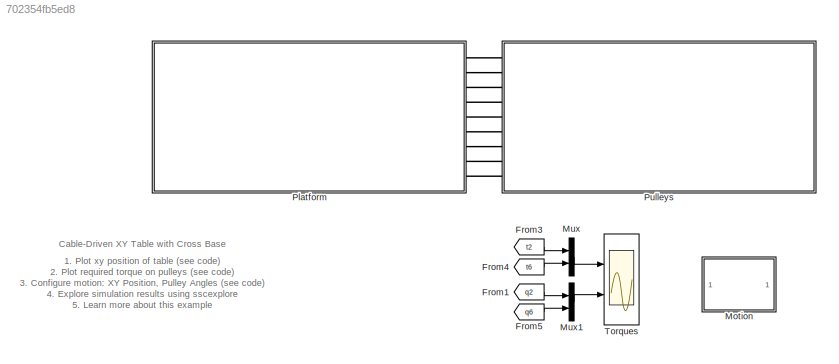
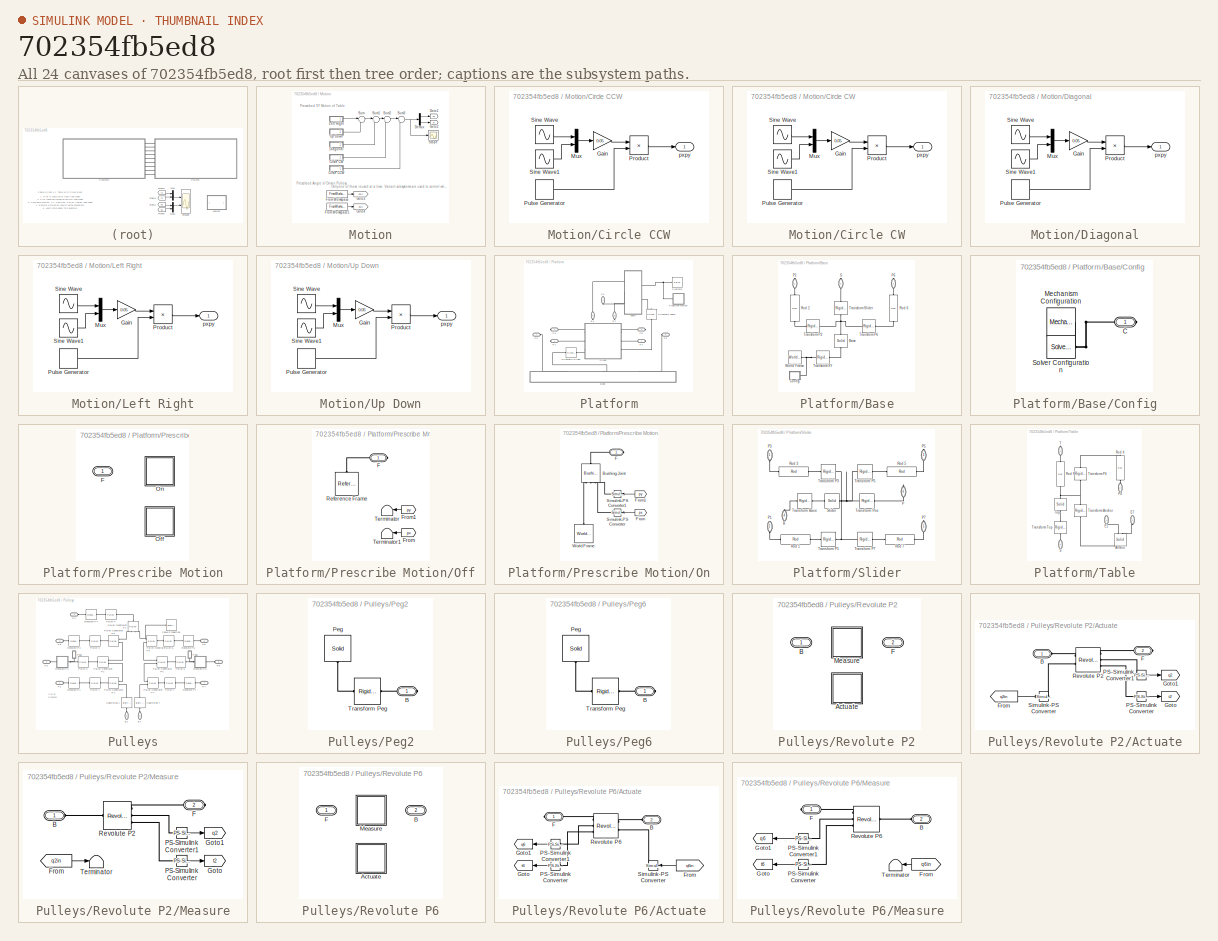
[diagram: thumbnail index - all 24 canvases of the model, root first then tree order]
MODEL slx_702354fb5ed8
KIND model
CONFIG AbsTol = auto
CONFIG EnableMultiTasking = on
CONFIG FixedStep = auto
CONFIG MaxStep = auto
CONFIG MinStep = auto
CONFIG RelTol = 1e-3
CONFIG SampleTimeConstraint = Unconstrained
CONFIG Solver = VariableStepAuto
CONFIG SolverName = VariableStepAuto
CONFIG StartTime = 0.0
CONFIG StopTime = 13
WORKSPACE source: MATLAB code (in-file)
WORKSPACE p_th = 0.01
WORKSPACE p_gd = 0.005
WORKSPACE p_ga = 25
WORKSPACE p_hr = 0.005
WORKSPACE p_rho = 7000
WORKSPACE rad_drive = 0.015*2  (= 0.03)
WORKSPACE rad_axis = 0.015*2  (= 0.03)
WORKSPACE rad_ctr = 0.015
WORKSPACE t_base_l = 0.4
WORKSPACE t_base_w = 0.1
WORKSPACE t_base_h = 0.01
WORKSPACE t_slider_l = 0.15
WORKSPACE t_slider_w = 0.1
WORKSPACE t_slider_h = 0.01
WORKSPACE t_pos_l = 0.025
WORKSPACE t_pos_w = 0.45
WORKSPACE t_pos_h = 0.01
WORKSPACE t_base_clr = [0.5412 0.6824 0.8392]
WORKSPACE t_slider_clr = [0.635 0.984 0.498]
WORKSPACE t_pos_clr = [1.0 0.99607843 0.8]
WORKSPACE p_drive_clr = t_base_clr*0.8
WORKSPACE p_axis_clr = t_pos_clr*0.8
WORKSPACE p_ctr_clr = t_slider_clr*0.8
WORKSPACE p_pos_off = 0.01
BLOCK [From] From1
  GotoTag = q2
  TagVisibility = global
BLOCK [From] From3
  GotoTag = t2
  TagVisibility = global
BLOCK [From] From4
  GotoTag = t6
  TagVisibility = global
BLOCK [From] From5
  GotoTag = q6
  TagVisibility = global
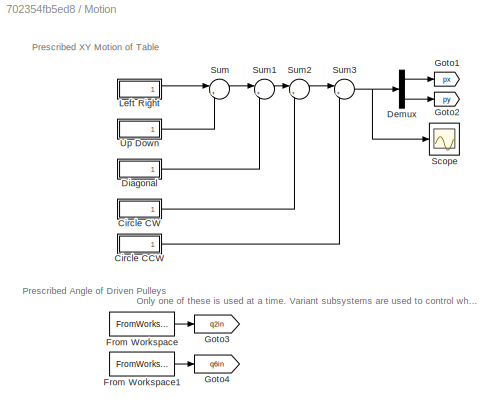
BLOCK [SubSystem] Motion
  Ports = []
  RequestExecContextInheritance = off
BLOCK [SubSystem] Motion/Circle CCW
  Ports = [0, 1]
  RequestExecContextInheritance = off
BLOCK [Gain] Motion/Circle CCW/Gain
  Gain = 0.05
  OutDataTypeStr = Inherit: Inherit via internal rule
  ParamDataTypeStr = Inherit: Inherit via internal rule
  SaturateOnIntegerOverflow = off
BLOCK [Mux] Motion/Circle CCW/Mux
  DisplayOption = bar
  Inputs = 2
  Ports = [2, 1]
BLOCK [Product] Motion/Circle CCW/Product
  InputSameDT = off
  OutDataTypeStr = Inherit: Inherit via internal rule
  Ports = [2, 1]
  RndMeth = Floor
  SaturateOnIntegerOverflow = off
BLOCK [DiscretePulseGenerator] Motion/Circle CCW/Pulse Generator
  Period = 15
  PhaseDelay = 10
  Ports = [0, 1]
  PulseType = Time based
  PulseWidth = 16.667
BLOCK [Sin] Motion/Circle CCW/Sine Wave
  Bias = -1
  Frequency = 2*pi/2.5
  Phase = pi/2
  Ports = [0, 1]
  SampleTime = 0
BLOCK [Sin] Motion/Circle CCW/Sine Wave1
  Frequency = 2*pi/2.5
  Ports = [0, 1]
  SampleTime = 0
BLOCK [Outport] Motion/Circle CCW/pxpy
  IconDisplay = Port number
BLOCK [SubSystem] Motion/Circle CW
  Ports = [0, 1]
  RequestExecContextInheritance = off
BLOCK [Gain] Motion/Circle CW/Gain
  Gain = 0.05
  OutDataTypeStr = Inherit: Inherit via internal rule
  ParamDataTypeStr = Inherit: Inherit via internal rule
  SaturateOnIntegerOverflow = off
BLOCK [Mux] Motion/Circle CW/Mux
  DisplayOption = bar
  Inputs = 2
  Ports = [2, 1]
BLOCK [Product] Motion/Circle CW/Product
  InputSameDT = off
  OutDataTypeStr = Inherit: Inherit via internal rule
  Ports = [2, 1]
  RndMeth = Floor
  SaturateOnIntegerOverflow = off
BLOCK [DiscretePulseGenerator] Motion/Circle CW/Pulse Generator
  Period = 15
  PhaseDelay = 7.5
  Ports = [0, 1]
  PulseType = Time based
  PulseWidth = 16.667
BLOCK [Sin] Motion/Circle CW/Sine Wave
  Bias = 1
  Frequency = 2*pi/2.5
  Phase = 3*pi/2
  Ports = [0, 1]
  SampleTime = 0
BLOCK [Sin] Motion/Circle CW/Sine Wave1
  Frequency = 2*pi/2.5
  Ports = [0, 1]
  SampleTime = 0
BLOCK [Outport] Motion/Circle CW/pxpy
  IconDisplay = Port number
BLOCK [Demux] Motion/Demux
  DisplayOption = bar
  Outputs = 2
  Ports = [1, 2]
BLOCK [SubSystem] Motion/Diagonal
  Ports = [0, 1]
  RequestExecContextInheritance = off
BLOCK [Gain] Motion/Diagonal/Gain
  Gain = 0.05
  OutDataTypeStr = Inherit: Inherit via internal rule
  ParamDataTypeStr = Inherit: Inherit via internal rule
  SaturateOnIntegerOverflow = off
BLOCK [Mux] Motion/Diagonal/Mux
  DisplayOption = bar
  Inputs = 2
  Ports = [2, 1]
BLOCK [Product] Motion/Diagonal/Product
  InputSameDT = off
  OutDataTypeStr = Inherit: Inherit via internal rule
  Ports = [2, 1]
  RndMeth = Floor
  SaturateOnIntegerOverflow = off
BLOCK [DiscretePulseGenerator] Motion/Diagonal/Pulse Generator
  Period = 15
  PhaseDelay = 5
  Ports = [0, 1]
  PulseType = Time based
  PulseWidth = 16.667
BLOCK [Sin] Motion/Diagonal/Sine Wave
  Frequency = 2*pi/2.5
  Ports = [0, 1]
  SampleTime = 0
BLOCK [Sin] Motion/Diagonal/Sine Wave1
  Frequency = 2*pi/2.5
  Ports = [0, 1]
  SampleTime = 0
BLOCK [Outport] Motion/Diagonal/pxpy
  IconDisplay = Port number
BLOCK [FromWorkspace] Motion/From Workspace
  SampleTime = 0
  VariableName = qd2
  ZeroCross = on
BLOCK [FromWorkspace] Motion/From Workspace1
  SampleTime = 0
  VariableName = qd6
  ZeroCross = on
BLOCK [Goto] Motion/Goto1
  GotoTag = px
  TagVisibility = global
BLOCK [Goto] Motion/Goto2
  GotoTag = py
  TagVisibility = global
BLOCK [Goto] Motion/Goto3
  GotoTag = q2in
  TagVisibility = global
BLOCK [Goto] Motion/Goto4
  GotoTag = q6in
  TagVisibility = global
BLOCK [SubSystem] Motion/Left Right
  Ports = [0, 1]
  RequestExecContextInheritance = off
BLOCK [Gain] Motion/Left Right/Gain
  Gain = 0.05
  OutDataTypeStr = Inherit: Inherit via internal rule
  ParamDataTypeStr = Inherit: Inherit via internal rule
  SaturateOnIntegerOverflow = off
BLOCK [Mux] Motion/Left Right/Mux
  DisplayOption = bar
  Inputs = 2
  Ports = [2, 1]
BLOCK [Product] Motion/Left Right/Product
  InputSameDT = off
  OutDataTypeStr = Inherit: Inherit via internal rule
  Ports = [2, 1]
  RndMeth = Floor
  SaturateOnIntegerOverflow = off
BLOCK [DiscretePulseGenerator] Motion/Left Right/Pulse Generator
  Period = 15
  Ports = [0, 1]
  PulseType = Time based
  PulseWidth = 16.667
BLOCK [Sin] Motion/Left Right/Sine Wave
  Frequency = 2*pi/2.5
  Ports = [0, 1]
  SampleTime = 0
BLOCK [Sin] Motion/Left Right/Sine Wave1
  Amplitude = -1*0
  Frequency = 2*pi/2.5
  Ports = [0, 1]
  SampleTime = 0
BLOCK [Outport] Motion/Left Right/pxpy
  IconDisplay = Port number
BLOCK [Scope] Motion/Scope
  Floating = off
  NumInputPorts = 1
  Ports = [1]
  ScopeSpecificationString = Simulink.scopes.TimeScopeBlockCfg('CurrentConfiguration', extmgr.ConfigurationSet(extmgr.Configuration('Core','General UI',true),extmgr.Configuration('Core','Source UI',true),extmgr.Configuration('Sources','WiredSimulink',true,'DataLoggingVariableName','ScopeData1'),extmgr.Configuration('Visuals','Time Domain',true,'SerializedDisplays',{struct('MinYLimReal','-0.125','MaxYLimReal','0.125','YLabelRe...<+1391ch>
BLOCK [Sum] Motion/Sum
  IconShape = round
  InputSameDT = off
  Inputs = |++
  OutDataTypeStr = Inherit: Inherit via internal rule
  Ports = [2, 1]
  SaturateOnIntegerOverflow = off
BLOCK [Sum] Motion/Sum1
  IconShape = round
  InputSameDT = off
  Inputs = |++
  OutDataTypeStr = Inherit: Inherit via internal rule
  Ports = [2, 1]
  SaturateOnIntegerOverflow = off
BLOCK [Sum] Motion/Sum2
  IconShape = round
  InputSameDT = off
  Inputs = |++
  OutDataTypeStr = Inherit: Inherit via internal rule
  Ports = [2, 1]
  SaturateOnIntegerOverflow = off
BLOCK [Sum] Motion/Sum3
  IconShape = round
  InputSameDT = off
  Inputs = |++
  OutDataTypeStr = Inherit: Inherit via internal rule
  Ports = [2, 1]
  SaturateOnIntegerOverflow = off
BLOCK [SubSystem] Motion/Up Down
  Ports = [0, 1]
  RequestExecContextInheritance = off
BLOCK [Gain] Motion/Up Down/Gain
  Gain = 0.05
  OutDataTypeStr = Inherit: Inherit via internal rule
  ParamDataTypeStr = Inherit: Inherit via internal rule
  SaturateOnIntegerOverflow = off
BLOCK [Mux] Motion/Up Down/Mux
  DisplayOption = bar
  Inputs = 2
  Ports = [2, 1]
BLOCK [Product] Motion/Up Down/Product
  InputSameDT = off
  OutDataTypeStr = Inherit: Inherit via internal rule
  Ports = [2, 1]
  RndMeth = Floor
  SaturateOnIntegerOverflow = off
BLOCK [DiscretePulseGenerator] Motion/Up Down/Pulse Generator
  Period = 15
  PhaseDelay = 2.5
  Ports = [0, 1]
  PulseType = Time based
  PulseWidth = 16.667
BLOCK [Sin] Motion/Up Down/Sine Wave
  Amplitude = 1*0
  Frequency = 2*pi/2.5
  Ports = [0, 1]
  SampleTime = 0
BLOCK [Sin] Motion/Up Down/Sine Wave1
  Frequency = 2*pi/2.5
  Ports = [0, 1]
  SampleTime = 0
BLOCK [Outport] Motion/Up Down/pxpy
  IconDisplay = Port number
BLOCK [Mux] Mux
  DisplayOption = bar
  Inputs = 2
  Ports = [2, 1]
BLOCK [Mux] Mux1
  DisplayOption = bar
  Inputs = 2
  Ports = [2, 1]
BLOCK [SubSystem] Platform
  Ports = [0, 0, 0, 0, 0, 0, 9]
  RequestExecContextInheritance = off
  Tag = PublishSubsystem
BLOCK [SubSystem] Platform/Base
  Ports = [0, 0, 0, 0, 0, 0, 3]
  RequestExecContextInheritance = off
BLOCK [Reference] Platform/Base/Base  REF=sm_lib/Body Elements/Solid
  Ports = [0, 0, 0, 0, 0, 1, 1]
  SourceBlock = sm_lib/Body Elements/Solid
  SourceProductBaseCode = MS
  SourceProductName = Simscape Multibody
  SourceType = Solid
BLOCK [SubSystem] Platform/Base/Config
  Ports = [0, 0, 0, 0, 0, 0, 1]
  RequestExecContextInheritance = off
BLOCK [PMIOPort] Platform/Base/Config/C
  Side = Right
BLOCK [Reference] Platform/Base/Config/Mechanism Configuration  REF=sm_lib/Utilities/Mechanism
Configuration
  Ports = [0, 0, 0, 0, 0, 0, 1]
  SourceBlock = sm_lib/Utilities/Mechanism\nConfiguration
  SourceProductBaseCode = MS
  SourceProductName = Simscape Multibody
  SourceType = Mechanism\nConfiguration
BLOCK [Reference] Platform/Base/Config/Solver Configuration  REF=nesl_utility/Solver
Configuration
  Ports = [0, 0, 0, 0, 0, 0, 1]
  SourceBlock = nesl_utility/Solver\nConfiguration
  SourceProductBaseCode = SS
  SourceProductName = Simscape
  SourceType = Solver\nConfiguration
BLOCK [PMIOPort] Platform/Base/P2
  Side = Right
BLOCK [PMIOPort] Platform/Base/P6
  Port = 3
  Side = Right
BLOCK [Reference] Platform/Base/Rod 2  REF=Multibody_Parts_Lib/Basic/Rod
  Ports = [0, 0, 0, 0, 0, 1, 1]
  SourceBlock = Multibody_Parts_Lib/Basic/Rod
  SourceProductName = Simscape Multibody Parts Library
  SourceType = Rod
BLOCK [Reference] Platform/Base/Rod 6  REF=Multibody_Parts_Lib/Basic/Rod
  Ports = [0, 0, 0, 0, 0, 1, 1]
  SourceBlock = Multibody_Parts_Lib/Basic/Rod
  SourceProductName = Simscape Multibody Parts Library
  SourceType = Rod
BLOCK [PMIOPort] Platform/Base/S
  Port = 2
  Side = Right
BLOCK [Reference] Platform/Base/Transform P2  REF=sm_lib/Frames and
Transforms/Rigid
Transform
  Ports = [0, 0, 0, 0, 0, 1, 1]
  SourceBlock = sm_lib/Frames and\nTransforms/Rigid\nTransform
  SourceProductBaseCode = MS
  SourceProductName = Simscape Multibody
  SourceType = Rigid\nTransform
BLOCK [Reference] Platform/Base/Transform P6  REF=sm_lib/Frames and
Transforms/Rigid
Transform
  Ports = [0, 0, 0, 0, 0, 1, 1]
  SourceBlock = sm_lib/Frames and\nTransforms/Rigid\nTransform
  SourceProductBaseCode = MS
  SourceProductName = Simscape Multibody
  SourceType = Rigid\nTransform
BLOCK [Reference] Platform/Base/Transform Slider  REF=sm_lib/Frames and
Transforms/Rigid
Transform
  Ports = [0, 0, 0, 0, 0, 1, 1]
  SourceBlock = sm_lib/Frames and\nTransforms/Rigid\nTransform
  SourceProductBaseCode = MS
  SourceProductName = Simscape Multibody
  SourceType = Rigid\nTransform
BLOCK [Reference] Platform/Base/Transform XY  REF=sm_lib/Frames and
Transforms/Rigid
Transform
  Ports = [0, 0, 0, 0, 0, 1, 1]
  SourceBlock = sm_lib/Frames and\nTransforms/Rigid\nTransform
  SourceProductBaseCode = MS
  SourceProductName = Simscape Multibody
  SourceType = Rigid\nTransform
BLOCK [Reference] Platform/Base/World Frame  REF=sm_lib/Frames and
Transforms/World Frame
  Ports = [0, 0, 0, 0, 0, 0, 1]
  SourceBlock = sm_lib/Frames and\nTransforms/World Frame
  SourceProductBaseCode = MS
  SourceProductName = Simscape Multibody
  SourceType = World Frame
BLOCK [PMIOPort] Platform/E1
  Port = 8
  Side = Right
BLOCK [PMIOPort] Platform/E7
  Port = 9
  Side = Right
BLOCK [PMIOPort] Platform/P1
  Side = Right
BLOCK [PMIOPort] Platform/P2
  Port = 2
  Side = Right
BLOCK [PMIOPort] Platform/P3
  Port = 3
  Side = Right
BLOCK [PMIOPort] Platform/P4
  Port = 4
  Side = Right
BLOCK [PMIOPort] Platform/P5
  Port = 5
  Side = Right
BLOCK [PMIOPort] Platform/P6
  Port = 6
  Side = Right
BLOCK [PMIOPort] Platform/P7
  Port = 7
  Side = Right
BLOCK [Reference] Platform/Platform  REF=sm_lib/Body Elements/Solid
  Ports = [0, 0, 0, 0, 0, 1, 1]
  SourceBlock = sm_lib/Body Elements/Solid
  SourceProductBaseCode = MS
  SourceProductName = Simscape Multibody
  SourceType = Solid
BLOCK [SubSystem] Platform/Prescribe Motion
  AttributesFormatString = %<ActiveVariant>
  LabelModeActiveChoice = On
  Ports = [0, 0, 0, 0, 0, 0, 1]
  RequestExecContextInheritance = off
  Variant = on
  VariantControl = Variant1
  VariantControlMode = Label
BLOCK [PMIOPort] Platform/Prescribe Motion/ F
  Side = Right
BLOCK [SubSystem] Platform/Prescribe Motion/Off
  Ports = [0, 0, 0, 0, 0, 0, 1]
  RequestExecContextInheritance = off
  Tag = PublishSubsystem
  VariantControl = Off
BLOCK [PMIOPort] Platform/Prescribe Motion/Off/F
  Side = Right
BLOCK [From] Platform/Prescribe Motion/Off/From
  GotoTag = px
  TagVisibility = global
BLOCK [From] Platform/Prescribe Motion/Off/From1
  GotoTag = py
  TagVisibility = global
BLOCK [Reference] Platform/Prescribe Motion/Off/Reference Frame  REF=sm_lib/Frames and
Transforms/Reference
Frame
  Ports = [0, 0, 0, 0, 0, 0, 1]
  SourceBlock = sm_lib/Frames and\nTransforms/Reference\nFrame
  SourceProductBaseCode = MS
  SourceProductName = Simscape Multibody
  SourceType = Reference\nFrame
BLOCK [Terminator] Platform/Prescribe Motion/Off/Terminator
BLOCK [Terminator] Platform/Prescribe Motion/Off/Terminator1
BLOCK [SubSystem] Platform/Prescribe Motion/On
  Ports = [0, 0, 0, 0, 0, 0, 1]
  RequestExecContextInheritance = off
  Tag = PublishSubsystem
  VariantControl = On
BLOCK [Reference] Platform/Prescribe Motion/On/Bushing Joint  REF=sm_lib/Joints/Bushing Joint
  Ports = [0, 0, 0, 0, 0, 3, 1]
  SourceBlock = sm_lib/Joints/Bushing Joint
  SourceProductBaseCode = MS
  SourceProductName = Simscape Multibody
  SourceType = Bushing Joint
BLOCK [PMIOPort] Platform/Prescribe Motion/On/F
  Side = Right
BLOCK [From] Platform/Prescribe Motion/On/From
  GotoTag = px
  TagVisibility = global
BLOCK [From] Platform/Prescribe Motion/On/From1
  GotoTag = py
  TagVisibility = global
BLOCK [Reference] Platform/Prescribe Motion/On/Simulink-PS Converter  REF=nesl_utility/Simulink-PS
Converter
  Ports = [1, 0, 0, 0, 0, 0, 1]
  SourceBlock = nesl_utility/Simulink-PS\nConverter
  SourceProductBaseCode = SS
  SourceProductName = Simscape
  SourceType = Simulink-PS\nConverter
BLOCK [Reference] Platform/Prescribe Motion/On/Simulink-PS Converter1  REF=nesl_utility/Simulink-PS
Converter
  Ports = [1, 0, 0, 0, 0, 0, 1]
  SourceBlock = nesl_utility/Simulink-PS\nConverter
  SourceProductBaseCode = SS
  SourceProductName = Simscape
  SourceType = Simulink-PS\nConverter
BLOCK [Reference] Platform/Prescribe Motion/On/World Frame  REF=sm_lib/Frames and
Transforms/World Frame
  Ports = [0, 0, 0, 0, 0, 0, 1]
  SourceBlock = sm_lib/Frames and\nTransforms/World Frame
  SourceProductBaseCode = MS
  SourceProductName = Simscape Multibody
  SourceType = World Frame
BLOCK [Reference] Platform/Prismatic Slider  REF=sm_lib/Joints/Prismatic
Joint
  Ports = [0, 0, 0, 0, 0, 1, 1]
  SourceBlock = sm_lib/Joints/Prismatic\nJoint
  SourceProductBaseCode = MS
  SourceProductName = Simscape Multibody
  SourceType = Prismatic\nJoint
BLOCK [Reference] Platform/Prismatic Table  REF=sm_lib/Joints/Prismatic
Joint
  Ports = [0, 0, 0, 0, 0, 1, 1]
  SourceBlock = sm_lib/Joints/Prismatic\nJoint
  SourceProductBaseCode = MS
  SourceProductName = Simscape Multibody
  SourceType = Prismatic\nJoint
BLOCK [SubSystem] Platform/Slider
  Ports = [0, 0, 0, 0, 0, 3, 3]
  RequestExecContextInheritance = off
BLOCK [PMIOPort] Platform/Slider/B
  Port = 4
  Side = Left
BLOCK [PMIOPort] Platform/Slider/P
  Port = 6
  Side = Right
BLOCK [PMIOPort] Platform/Slider/P1
  Port = 2
  Side = Left
BLOCK [PMIOPort] Platform/Slider/P3
  Side = Left
BLOCK [PMIOPort] Platform/Slider/P5
  Port = 3
  Side = Right
BLOCK [PMIOPort] Platform/Slider/P7
  Port = 5
  Side = Right
BLOCK [Reference] Platform/Slider/Rod 1  REF=Multibody_Parts_Lib/Basic/Rod
  Ports = [0, 0, 0, 0, 0, 1, 1]
  SourceBlock = Multibody_Parts_Lib/Basic/Rod
  SourceProductName = Simscape Multibody Parts Library
  SourceType = Rod
BLOCK [Reference] Platform/Slider/Rod 3  REF=Multibody_Parts_Lib/Basic/Rod
  Ports = [0, 0, 0, 0, 0, 1, 1]
  SourceBlock = Multibody_Parts_Lib/Basic/Rod
  SourceProductName = Simscape Multibody Parts Library
  SourceType = Rod
BLOCK [Reference] Platform/Slider/Rod 5  REF=Multibody_Parts_Lib/Basic/Rod
  Ports = [0, 0, 0, 0, 0, 1, 1]
  SourceBlock = Multibody_Parts_Lib/Basic/Rod
  SourceProductName = Simscape Multibody Parts Library
  SourceType = Rod
BLOCK [Reference] Platform/Slider/Rod 7  REF=Multibody_Parts_Lib/Basic/Rod
  Ports = [0, 0, 0, 0, 0, 1, 1]
  SourceBlock = Multibody_Parts_Lib/Basic/Rod
  SourceProductName = Simscape Multibody Parts Library
  SourceType = Rod
BLOCK [Reference] Platform/Slider/Slider  REF=sm_lib/Body Elements/Solid
  Ports = [0, 0, 0, 0, 0, 1, 1]
  SourceBlock = sm_lib/Body Elements/Solid
  SourceProductBaseCode = MS
  SourceProductName = Simscape Multibody
  SourceType = Solid
BLOCK [Reference] Platform/Slider/Transform Base  REF=sm_lib/Frames and
Transforms/Rigid
Transform
  Ports = [0, 0, 0, 0, 0, 1, 1]
  SourceBlock = sm_lib/Frames and\nTransforms/Rigid\nTransform
  SourceProductBaseCode = MS
  SourceProductName = Simscape Multibody
  SourceType = Rigid\nTransform
BLOCK [Reference] Platform/Slider/Transform P1  REF=sm_lib/Frames and
Transforms/Rigid
Transform
  Ports = [0, 0, 0, 0, 0, 1, 1]
  SourceBlock = sm_lib/Frames and\nTransforms/Rigid\nTransform
  SourceProductBaseCode = MS
  SourceProductName = Simscape Multibody
  SourceType = Rigid\nTransform
BLOCK [Reference] Platform/Slider/Transform P3  REF=sm_lib/Frames and
Transforms/Rigid
Transform
  Ports = [0, 0, 0, 0, 0, 1, 1]
  SourceBlock = sm_lib/Frames and\nTransforms/Rigid\nTransform
  SourceProductBaseCode = MS
  SourceProductName = Simscape Multibody
  SourceType = Rigid\nTransform
BLOCK [Reference] Platform/Slider/Transform P5  REF=sm_lib/Frames and
Transforms/Rigid
Transform
  Ports = [0, 0, 0, 0, 0, 1, 1]
  SourceBlock = sm_lib/Frames and\nTransforms/Rigid\nTransform
  SourceProductBaseCode = MS
  SourceProductName = Simscape Multibody
  SourceType = Rigid\nTransform
BLOCK [Reference] Platform/Slider/Transform P7  REF=sm_lib/Frames and
Transforms/Rigid
Transform
  Ports = [0, 0, 0, 0, 0, 1, 1]
  SourceBlock = sm_lib/Frames and\nTransforms/Rigid\nTransform
  SourceProductBaseCode = MS
  SourceProductName = Simscape Multibody
  SourceType = Rigid\nTransform
BLOCK [Reference] Platform/Slider/Transform Pos  REF=sm_lib/Frames and
Transforms/Rigid
Transform
  Ports = [0, 0, 0, 0, 0, 1, 1]
  SourceBlock = sm_lib/Frames and\nTransforms/Rigid\nTransform
  SourceProductBaseCode = MS
  SourceProductName = Simscape Multibody
  SourceType = Rigid\nTransform
BLOCK [SubSystem] Platform/Table
  Ports = [0, 0, 0, 0, 0, 3, 2]
  RequestExecContextInheritance = off
BLOCK [Reference] Platform/Table/Anchor  REF=sm_lib/Body Elements/Solid
  Ports = [0, 0, 0, 0, 0, 2, 1]
  SourceBlock = sm_lib/Body Elements/Solid
  SourceProductBaseCode = MS
  SourceProductName = Simscape Multibody
  SourceType = Solid
BLOCK [PMIOPort] Platform/Table/E1
  Side = Left
BLOCK [PMIOPort] Platform/Table/E7
  Port = 3
  Side = Left
BLOCK [PMIOPort] Platform/Table/P4
  Port = 2
  Side = Left
BLOCK [Reference] Platform/Table/Rod 4  REF=Multibody_Parts_Lib/Basic/Rod
  Ports = [0, 0, 0, 0, 0, 1, 1]
  SourceBlock = Multibody_Parts_Lib/Basic/Rod
  SourceProductName = Simscape Multibody Parts Library
  SourceType = Rod
BLOCK [Reference] Platform/Table/Rod P  REF=Multibody_Parts_Lib/Basic/Rod
  Ports = [0, 0, 0, 0, 0, 1, 1]
  SourceBlock = Multibody_Parts_Lib/Basic/Rod
  SourceProductName = Simscape Multibody Parts Library
  SourceType = Rod
BLOCK [PMIOPort] Platform/Table/S
  Port = 5
  Side = Right
BLOCK [PMIOPort] Platform/Table/T
  Port = 4
  Side = Right
BLOCK [Reference] Platform/Table/Top  REF=sm_lib/Body Elements/Solid
  Ports = [0, 0, 0, 0, 0, 1, 1]
  SourceBlock = sm_lib/Body Elements/Solid
  SourceProductBaseCode = MS
  SourceProductName = Simscape Multibody
  SourceType = Solid
BLOCK [Reference] Platform/Table/Transform Anchor  REF=sm_lib/Frames and
Transforms/Rigid
Transform
  Ports = [0, 0, 0, 0, 0, 1, 1]
  SourceBlock = sm_lib/Frames and\nTransforms/Rigid\nTransform
  SourceProductBaseCode = MS
  SourceProductName = Simscape Multibody
  SourceType = Rigid\nTransform
BLOCK [Reference] Platform/Table/Transform P4  REF=sm_lib/Frames and
Transforms/Rigid
Transform
  Ports = [0, 0, 0, 0, 0, 1, 1]
  SourceBlock = sm_lib/Frames and\nTransforms/Rigid\nTransform
  SourceProductBaseCode = MS
  SourceProductName = Simscape Multibody
  SourceType = Rigid\nTransform
BLOCK [Reference] Platform/Table/Transform Top  REF=sm_lib/Frames and
Transforms/Rigid
Transform
  Ports = [0, 0, 0, 0, 0, 1, 1]
  SourceBlock = sm_lib/Frames and\nTransforms/Rigid\nTransform
  SourceProductBaseCode = MS
  SourceProductName = Simscape Multibody
  SourceType = Rigid\nTransform
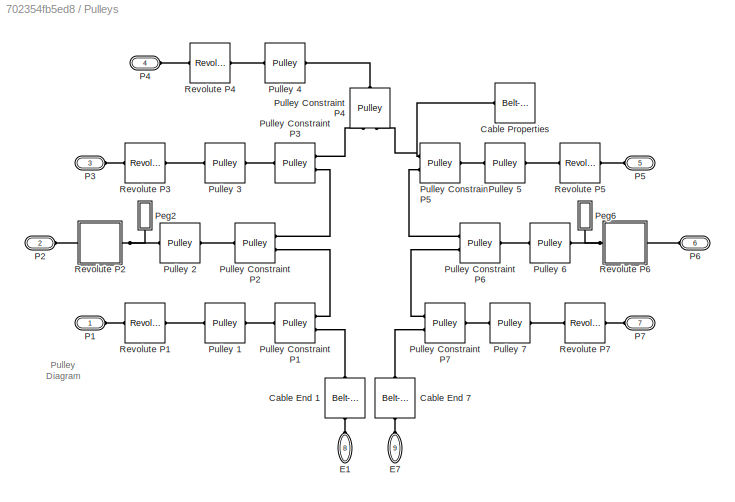
BLOCK [SubSystem] Pulleys
  Ports = [0, 0, 0, 0, 0, 9]
  RequestExecContextInheritance = off
  Tag = PublishSubsystem
BLOCK [Reference] Pulleys/Cable End 1  REF=sm_lib/Belts and Cables/Belt-Cable End
  Ports = [0, 0, 0, 0, 0, 1, 1]
  SourceBlock = sm_lib/Belts and Cables/Belt-Cable End
  SourceProductBaseCode = MS
  SourceProductName = Simscape Multibody
  SourceType = Belt-Cable End
BLOCK [Reference] Pulleys/Cable End 7  REF=sm_lib/Belts and Cables/Belt-Cable End
  Ports = [0, 0, 0, 0, 0, 1, 1]
  SourceBlock = sm_lib/Belts and Cables/Belt-Cable End
  SourceProductBaseCode = MS
  SourceProductName = Simscape Multibody
  SourceType = Belt-Cable End
BLOCK [Reference] Pulleys/Cable Properties  REF=sm_lib/Belts and Cables/Belt-Cable
Properties
  Ports = [0, 0, 0, 0, 0, 1]
  SourceBlock = sm_lib/Belts and Cables/Belt-Cable\nProperties
  SourceProductBaseCode = MS
  SourceProductName = Simscape Multibody
  SourceType = Belt-Cable\nProperties
BLOCK [PMIOPort] Pulleys/E1
  Port = 8
  Side = Left
BLOCK [PMIOPort] Pulleys/E7
  Port = 9
  Side = Left
BLOCK [PMIOPort] Pulleys/P1
  Side = Left
BLOCK [PMIOPort] Pulleys/P2
  Port = 2
  Side = Left
BLOCK [PMIOPort] Pulleys/P3
  Port = 3
  Side = Left
BLOCK [PMIOPort] Pulleys/P4
  Port = 4
  Side = Left
BLOCK [PMIOPort] Pulleys/P5
  Port = 5
  Side = Left
BLOCK [PMIOPort] Pulleys/P6
  Port = 6
  Side = Left
BLOCK [PMIOPort] Pulleys/P7
  Port = 7
  Side = Left
BLOCK [SubSystem] Pulleys/Peg2
  Ports = [0, 0, 0, 0, 0, 0, 1]
  RequestExecContextInheritance = off
BLOCK [PMIOPort] Pulleys/Peg2/B
  Side = Right
BLOCK [Reference] Pulleys/Peg2/Peg  REF=sm_lib/Body Elements/Solid
  Ports = [0, 0, 0, 0, 0, 1]
  SourceBlock = sm_lib/Body Elements/Solid
  SourceProductBaseCode = MS
  SourceProductName = Simscape Multibody
  SourceType = Solid
BLOCK [Reference] Pulleys/Peg2/Transform Peg  REF=sm_lib/Frames and
Transforms/Rigid
Transform
  Ports = [0, 0, 0, 0, 0, 1, 1]
  SourceBlock = sm_lib/Frames and\nTransforms/Rigid\nTransform
  SourceProductBaseCode = MS
  SourceProductName = Simscape Multibody
  SourceType = Rigid\nTransform
BLOCK [SubSystem] Pulleys/Peg6
  Ports = [0, 0, 0, 0, 0, 0, 1]
  RequestExecContextInheritance = off
BLOCK [PMIOPort] Pulleys/Peg6/B
  Side = Right
BLOCK [Reference] Pulleys/Peg6/Peg  REF=sm_lib/Body Elements/Solid
  Ports = [0, 0, 0, 0, 0, 1]
  SourceBlock = sm_lib/Body Elements/Solid
  SourceProductBaseCode = MS
  SourceProductName = Simscape Multibody
  SourceType = Solid
BLOCK [Reference] Pulleys/Peg6/Transform Peg  REF=sm_lib/Frames and
Transforms/Rigid
Transform
  Ports = [0, 0, 0, 0, 0, 1, 1]
  SourceBlock = sm_lib/Frames and\nTransforms/Rigid\nTransform
  SourceProductBaseCode = MS
  SourceProductName = Simscape Multibody
  SourceType = Rigid\nTransform
BLOCK [Reference] Pulleys/Pulley 1  REF=Multibody_Parts_Lib/Basic/Pulley
  Ports = [0, 0, 0, 0, 0, 1, 1]
  SourceBlock = Multibody_Parts_Lib/Basic/Pulley
  SourceProductName = Simscape Multibody Parts Library
  SourceType = Pulley with Hole
BLOCK [Reference] Pulleys/Pulley 2  REF=Multibody_Parts_Lib/Basic/Pulley
  Ports = [0, 0, 0, 0, 0, 1, 1]
  SourceBlock = Multibody_Parts_Lib/Basic/Pulley
  SourceProductName = Simscape Multibody Parts Library
  SourceType = Pulley with Hole
BLOCK [Reference] Pulleys/Pulley 3  REF=Multibody_Parts_Lib/Basic/Pulley
  Ports = [0, 0, 0, 0, 0, 1, 1]
  SourceBlock = Multibody_Parts_Lib/Basic/Pulley
  SourceProductName = Simscape Multibody Parts Library
  SourceType = Pulley with Hole
BLOCK [Reference] Pulleys/Pulley 4  REF=Multibody_Parts_Lib/Basic/Pulley
  Ports = [0, 0, 0, 0, 0, 1, 1]
  SourceBlock = Multibody_Parts_Lib/Basic/Pulley
  SourceProductName = Simscape Multibody Parts Library
  SourceType = Pulley with Hole
BLOCK [Reference] Pulleys/Pulley 5  REF=Multibody_Parts_Lib/Basic/Pulley
  Ports = [0, 0, 0, 0, 0, 1, 1]
  SourceBlock = Multibody_Parts_Lib/Basic/Pulley
  SourceProductName = Simscape Multibody Parts Library
  SourceType = Pulley with Hole
BLOCK [Reference] Pulleys/Pulley 6  REF=Multibody_Parts_Lib/Basic/Pulley
  Ports = [0, 0, 0, 0, 0, 1, 1]
  SourceBlock = Multibody_Parts_Lib/Basic/Pulley
  SourceProductName = Simscape Multibody Parts Library
  SourceType = Pulley with Hole
BLOCK [Reference] Pulleys/Pulley 7  REF=Multibody_Parts_Lib/Basic/Pulley
  Ports = [0, 0, 0, 0, 0, 1, 1]
  SourceBlock = Multibody_Parts_Lib/Basic/Pulley
  SourceProductName = Simscape Multibody Parts Library
  SourceType = Pulley with Hole
BLOCK [Reference] Pulleys/Pulley Constraint P1  REF=sm_lib/Belts and Cables/Pulley
  Ports = [0, 0, 0, 0, 0, 1, 2]
  SourceBlock = sm_lib/Belts and Cables/Pulley
  SourceProductBaseCode = MS
  SourceProductName = Simscape Multibody
  SourceType = Pulley
BLOCK [Reference] Pulleys/Pulley Constraint P2  REF=sm_lib/Belts and Cables/Pulley
  Ports = [0, 0, 0, 0, 0, 1, 2]
  SourceBlock = sm_lib/Belts and Cables/Pulley
  SourceProductBaseCode = MS
  SourceProductName = Simscape Multibody
  SourceType = Pulley
BLOCK [Reference] Pulleys/Pulley Constraint P3  REF=sm_lib/Belts and Cables/Pulley
  Ports = [0, 0, 0, 0, 0, 1, 2]
  SourceBlock = sm_lib/Belts and Cables/Pulley
  SourceProductBaseCode = MS
  SourceProductName = Simscape Multibody
  SourceType = Pulley
BLOCK [Reference] Pulleys/Pulley Constraint P4  REF=sm_lib/Belts and Cables/Pulley
  Ports = [0, 0, 0, 0, 0, 1, 2]
  SourceBlock = sm_lib/Belts and Cables/Pulley
  SourceProductBaseCode = MS
  SourceProductName = Simscape Multibody
  SourceType = Pulley
BLOCK [Reference] Pulleys/Pulley Constraint P5  REF=sm_lib/Belts and Cables/Pulley
  Ports = [0, 0, 0, 0, 0, 1, 2]
  SourceBlock = sm_lib/Belts and Cables/Pulley
  SourceProductBaseCode = MS
  SourceProductName = Simscape Multibody
  SourceType = Pulley
BLOCK [Reference] Pulleys/Pulley Constraint P6  REF=sm_lib/Belts and Cables/Pulley
  Ports = [0, 0, 0, 0, 0, 1, 2]
  SourceBlock = sm_lib/Belts and Cables/Pulley
  SourceProductBaseCode = MS
  SourceProductName = Simscape Multibody
  SourceType = Pulley
BLOCK [Reference] Pulleys/Pulley Constraint P7  REF=sm_lib/Belts and Cables/Pulley
  Ports = [0, 0, 0, 0, 0, 1, 2]
  SourceBlock = sm_lib/Belts and Cables/Pulley
  SourceProductBaseCode = MS
  SourceProductName = Simscape Multibody
  SourceType = Pulley
BLOCK [Reference] Pulleys/Revolute P1  REF=sm_lib/Joints/Revolute Joint
  Ports = [0, 0, 0, 0, 0, 1, 1]
  SourceBlock = sm_lib/Joints/Revolute Joint
  SourceProductBaseCode = MS
  SourceProductName = Simscape Multibody
  SourceType = Revolute Joint
BLOCK [SubSystem] Pulleys/Revolute P2
  AttributesFormatString = %<ActiveVariant>
  LabelModeActiveChoice = Measure
  Ports = [0, 0, 0, 0, 0, 1, 1]
  RequestExecContextInheritance = off
  Variant = on
  VariantControl = Variant1
  VariantControlMode = Label
BLOCK [PMIOPort] Pulleys/Revolute P2/ B
  Side = Left
BLOCK [PMIOPort] Pulleys/Revolute P2/ F
  Port = 2
  Side = Right
BLOCK [SubSystem] Pulleys/Revolute P2/Actuate
  Ports = [0, 0, 0, 0, 0, 1, 1]
  RequestExecContextInheritance = off
  VariantControl = Actuate
BLOCK [PMIOPort] Pulleys/Revolute P2/Actuate/B
  Side = Left
BLOCK [PMIOPort] Pulleys/Revolute P2/Actuate/F
  Port = 2
  Side = Right
BLOCK [From] Pulleys/Revolute P2/Actuate/From
  GotoTag = q2in
  TagVisibility = global
BLOCK [Goto] Pulleys/Revolute P2/Actuate/Goto
  GotoTag = t2
  TagVisibility = global
BLOCK [Goto] Pulleys/Revolute P2/Actuate/Goto1
  GotoTag = q2
  TagVisibility = global
BLOCK [Reference] Pulleys/Revolute P2/Actuate/PS-Simulink Converter  REF=nesl_utility/PS-Simulink
Converter
  Ports = [0, 1, 0, 0, 0, 1]
  SourceBlock = nesl_utility/PS-Simulink\nConverter
  SourceProductBaseCode = SS
  SourceProductName = Simscape
  SourceType = PS-Simulink\nConverter
BLOCK [Reference] Pulleys/Revolute P2/Actuate/PS-Simulink Converter1  REF=nesl_utility/PS-Simulink
Converter
  Ports = [0, 1, 0, 0, 0, 1]
  SourceBlock = nesl_utility/PS-Simulink\nConverter
  SourceProductBaseCode = SS
  SourceProductName = Simscape
  SourceType = PS-Simulink\nConverter
BLOCK [Reference] Pulleys/Revolute P2/Actuate/Revolute P2  REF=sm_lib/Joints/Revolute Joint
  Ports = [0, 0, 0, 0, 0, 2, 3]
  SourceBlock = sm_lib/Joints/Revolute Joint
  SourceProductBaseCode = MS
  SourceProductName = Simscape Multibody
  SourceType = Revolute Joint
BLOCK [Reference] Pulleys/Revolute P2/Actuate/Simulink-PS Converter  REF=nesl_utility/Simulink-PS
Converter
  Ports = [1, 0, 0, 0, 0, 0, 1]
  SourceBlock = nesl_utility/Simulink-PS\nConverter
  SourceProductBaseCode = SS
  SourceProductName = Simscape
  SourceType = Simulink-PS\nConverter
BLOCK [SubSystem] Pulleys/Revolute P2/Measure
  Ports = [0, 0, 0, 0, 0, 1, 1]
  RequestExecContextInheritance = off
  VariantControl = Measure
BLOCK [PMIOPort] Pulleys/Revolute P2/Measure/B
  Side = Left
BLOCK [PMIOPort] Pulleys/Revolute P2/Measure/F
  Port = 2
  Side = Right
BLOCK [From] Pulleys/Revolute P2/Measure/From
  GotoTag = q2in
  TagVisibility = global
BLOCK [Goto] Pulleys/Revolute P2/Measure/Goto
  GotoTag = t2
  TagVisibility = global
BLOCK [Goto] Pulleys/Revolute P2/Measure/Goto1
  GotoTag = q2
  TagVisibility = global
BLOCK [Reference] Pulleys/Revolute P2/Measure/PS-Simulink Converter  REF=nesl_utility/PS-Simulink
Converter
  Ports = [0, 1, 0, 0, 0, 1]
  SourceBlock = nesl_utility/PS-Simulink\nConverter
  SourceProductBaseCode = SS
  SourceProductName = Simscape
  SourceType = PS-Simulink\nConverter
BLOCK [Reference] Pulleys/Revolute P2/Measure/PS-Simulink Converter1  REF=nesl_utility/PS-Simulink
Converter
  Ports = [0, 1, 0, 0, 0, 1]
  SourceBlock = nesl_utility/PS-Simulink\nConverter
  SourceProductBaseCode = SS
  SourceProductName = Simscape
  SourceType = PS-Simulink\nConverter
BLOCK [Reference] Pulleys/Revolute P2/Measure/Revolute P2  REF=sm_lib/Joints/Revolute Joint
  Ports = [0, 0, 0, 0, 0, 1, 3]
  SourceBlock = sm_lib/Joints/Revolute Joint
  SourceProductBaseCode = MS
  SourceProductName = Simscape Multibody
  SourceType = Revolute Joint
BLOCK [Terminator] Pulleys/Revolute P2/Measure/Terminator
BLOCK [Reference] Pulleys/Revolute P3  REF=sm_lib/Joints/Revolute Joint
  Ports = [0, 0, 0, 0, 0, 1, 1]
  SourceBlock = sm_lib/Joints/Revolute Joint
  SourceProductBaseCode = MS
  SourceProductName = Simscape Multibody
  SourceType = Revolute Joint
BLOCK [Reference] Pulleys/Revolute P4  REF=sm_lib/Joints/Revolute Joint
  Ports = [0, 0, 0, 0, 0, 1, 1]
  SourceBlock = sm_lib/Joints/Revolute Joint
  SourceProductBaseCode = MS
  SourceProductName = Simscape Multibody
  SourceType = Revolute Joint
BLOCK [Reference] Pulleys/Revolute P5  REF=sm_lib/Joints/Revolute Joint
  Ports = [0, 0, 0, 0, 0, 1, 1]
  SourceBlock = sm_lib/Joints/Revolute Joint
  SourceProductBaseCode = MS
  SourceProductName = Simscape Multibody
  SourceType = Revolute Joint
BLOCK [SubSystem] Pulleys/Revolute P6
  AttributesFormatString = %<ActiveVariant>
  LabelModeActiveChoice = Measure
  Ports = [0, 0, 0, 0, 0, 1, 1]
  RequestExecContextInheritance = off
  Variant = on
  VariantControl = Variant1
  VariantControlMode = Label
BLOCK [PMIOPort] Pulleys/Revolute P6/ B
  Port = 2
  Side = Left
BLOCK [PMIOPort] Pulleys/Revolute P6/ F
  Side = Right
BLOCK [SubSystem] Pulleys/Revolute P6/Actuate
  Ports = [0, 0, 0, 0, 0, 1, 1]
  RequestExecContextInheritance = off
  Tag = PublishSubsystem
  VariantControl = Actuate
BLOCK [PMIOPort] Pulleys/Revolute P6/Actuate/B
  Port = 2
  Side = Left
BLOCK [PMIOPort] Pulleys/Revolute P6/Actuate/F
  Side = Right
BLOCK [From] Pulleys/Revolute P6/Actuate/From
  GotoTag = q6in
  TagVisibility = global
BLOCK [Goto] Pulleys/Revolute P6/Actuate/Goto
  GotoTag = t6
  TagVisibility = global
BLOCK [Goto] Pulleys/Revolute P6/Actuate/Goto1
  GotoTag = q6
  TagVisibility = global
BLOCK [Reference] Pulleys/Revolute P6/Actuate/PS-Simulink Converter  REF=nesl_utility/PS-Simulink
Converter
  Ports = [0, 1, 0, 0, 0, 1]
  SourceBlock = nesl_utility/PS-Simulink\nConverter
  SourceProductBaseCode = SS
  SourceProductName = Simscape
  SourceType = PS-Simulink\nConverter
BLOCK [Reference] Pulleys/Revolute P6/Actuate/PS-Simulink Converter1  REF=nesl_utility/PS-Simulink
Converter
  Ports = [0, 1, 0, 0, 0, 1]
  SourceBlock = nesl_utility/PS-Simulink\nConverter
  SourceProductBaseCode = SS
  SourceProductName = Simscape
  SourceType = PS-Simulink\nConverter
BLOCK [Reference] Pulleys/Revolute P6/Actuate/Revolute P6  REF=sm_lib/Joints/Revolute Joint
  Ports = [0, 0, 0, 0, 0, 2, 3]
  SourceBlock = sm_lib/Joints/Revolute Joint
  SourceProductBaseCode = MS
  SourceProductName = Simscape Multibody
  SourceType = Revolute Joint
BLOCK [Reference] Pulleys/Revolute P6/Actuate/Simulink-PS Converter  REF=nesl_utility/Simulink-PS
Converter
  Ports = [1, 0, 0, 0, 0, 0, 1]
  SourceBlock = nesl_utility/Simulink-PS\nConverter
  SourceProductBaseCode = SS
  SourceProductName = Simscape
  SourceType = Simulink-PS\nConverter
BLOCK [SubSystem] Pulleys/Revolute P6/Measure
  Ports = [0, 0, 0, 0, 0, 1, 1]
  RequestExecContextInheritance = off
  Tag = PublishSubsystem
  VariantControl = Measure
BLOCK [PMIOPort] Pulleys/Revolute P6/Measure/B
  Port = 2
  Side = Left
BLOCK [PMIOPort] Pulleys/Revolute P6/Measure/F
  Side = Right
BLOCK [From] Pulleys/Revolute P6/Measure/From
  GotoTag = q6in
  TagVisibility = global
BLOCK [Goto] Pulleys/Revolute P6/Measure/Goto
  GotoTag = t6
  TagVisibility = global
BLOCK [Goto] Pulleys/Revolute P6/Measure/Goto1
  GotoTag = q6
  TagVisibility = global
BLOCK [Reference] Pulleys/Revolute P6/Measure/PS-Simulink Converter  REF=nesl_utility/PS-Simulink
Converter
  Ports = [0, 1, 0, 0, 0, 1]
  SourceBlock = nesl_utility/PS-Simulink\nConverter
  SourceProductBaseCode = SS
  SourceProductName = Simscape
  SourceType = PS-Simulink\nConverter
BLOCK [Reference] Pulleys/Revolute P6/Measure/PS-Simulink Converter1  REF=nesl_utility/PS-Simulink
Converter
  Ports = [0, 1, 0, 0, 0, 1]
  SourceBlock = nesl_utility/PS-Simulink\nConverter
  SourceProductBaseCode = SS
  SourceProductName = Simscape
  SourceType = PS-Simulink\nConverter
BLOCK [Reference] Pulleys/Revolute P6/Measure/Revolute P6  REF=sm_lib/Joints/Revolute Joint
  Ports = [0, 0, 0, 0, 0, 1, 3]
  SourceBlock = sm_lib/Joints/Revolute Joint
  SourceProductBaseCode = MS
  SourceProductName = Simscape Multibody
  SourceType = Revolute Joint
BLOCK [Terminator] Pulleys/Revolute P6/Measure/Terminator
BLOCK [Reference] Pulleys/Revolute P7  REF=sm_lib/Joints/Revolute Joint
  Ports = [0, 0, 0, 0, 0, 1, 1]
  SourceBlock = sm_lib/Joints/Revolute Joint
  SourceProductBaseCode = MS
  SourceProductName = Simscape Multibody
  SourceType = Revolute Joint
BLOCK [Scope] Torques
  Floating = off
  NumInputPorts = 2
  Ports = [2]
  ScopeSpecificationString = Simulink.scopes.TimeScopeBlockCfg('CurrentConfiguration', extmgr.ConfigurationSet(extmgr.Configuration('Core','General UI',true),extmgr.Configuration('Core','Source UI',true),extmgr.Configuration('Sources','WiredSimulink',true),extmgr.Configuration('Visuals','Time Domain',true,'SerializedDisplays',{struct('MinYLimReal','-0.14527','MaxYLimReal','0.11195','YLabelReal','','MinYLimMag','0.00000','MaxY...<+1400ch>
ANNOTATION (root): 1. Plot xy position of table ( see code ) 2. Plot required torque on pulleys ( see code ) 3. Configure motion: XY Position , Pulley Angles ( see code ) 4. Explore simulation results using sscexplore 5. Learn more about this example
ANNOTATION (root): Cable-Driven XY Table with Cross Base
ANNOTATION Motion: Only one of these is used at a time. Variant subsystems are used to control which inputs are used.
ANNOTATION Motion: Prescribed Angle of Driven Pulleys
ANNOTATION Motion: Prescribed XY Motion of Table
ANNOTATION Pulleys: Pulley Diagram
LINE From1:1 -> Mux1:1
LINE From3:1 -> Mux:1
LINE From4:1 -> Mux:2
LINE From5:1 -> Mux1:2
LINE Motion/Circle CCW/Gain:1 -> Motion/Circle CCW/Product:1
LINE Motion/Circle CCW/Mux:1 -> Motion/Circle CCW/Gain:1
LINE Motion/Circle CCW/Product:1 -> Motion/Circle CCW/pxpy:1
LINE Motion/Circle CCW/Pulse Generator:1 -> Motion/Circle CCW/Product:2
LINE Motion/Circle CCW/Sine Wave1:1 -> Motion/Circle CCW/Mux:2
LINE Motion/Circle CCW/Sine Wave:1 -> Motion/Circle CCW/Mux:1
LINE Motion/Circle CCW:1 -> Motion/Sum3:2
LINE Motion/Circle CW/Gain:1 -> Motion/Circle CW/Product:1
LINE Motion/Circle CW/Mux:1 -> Motion/Circle CW/Gain:1
LINE Motion/Circle CW/Product:1 -> Motion/Circle CW/pxpy:1
LINE Motion/Circle CW/Pulse Generator:1 -> Motion/Circle CW/Product:2
LINE Motion/Circle CW/Sine Wave1:1 -> Motion/Circle CW/Mux:2
LINE Motion/Circle CW/Sine Wave:1 -> Motion/Circle CW/Mux:1
LINE Motion/Circle CW:1 -> Motion/Sum2:2
LINE Motion/Demux:1 -> Motion/Goto1:1
LINE Motion/Demux:2 -> Motion/Goto2:1
LINE Motion/Diagonal/Gain:1 -> Motion/Diagonal/Product:1
LINE Motion/Diagonal/Mux:1 -> Motion/Diagonal/Gain:1
LINE Motion/Diagonal/Product:1 -> Motion/Diagonal/pxpy:1
LINE Motion/Diagonal/Pulse Generator:1 -> Motion/Diagonal/Product:2
LINE Motion/Diagonal/Sine Wave1:1 -> Motion/Diagonal/Mux:2
LINE Motion/Diagonal/Sine Wave:1 -> Motion/Diagonal/Mux:1
LINE Motion/Diagonal:1 -> Motion/Sum1:2
LINE Motion/From Workspace1:1 -> Motion/Goto4:1
LINE Motion/From Workspace:1 -> Motion/Goto3:1
LINE Motion/Left Right/Gain:1 -> Motion/Left Right/Product:1
LINE Motion/Left Right/Mux:1 -> Motion/Left Right/Gain:1
LINE Motion/Left Right/Product:1 -> Motion/Left Right/pxpy:1
LINE Motion/Left Right/Pulse Generator:1 -> Motion/Left Right/Product:2
LINE Motion/Left Right/Sine Wave1:1 -> Motion/Left Right/Mux:2
LINE Motion/Left Right/Sine Wave:1 -> Motion/Left Right/Mux:1
LINE Motion/Left Right:1 -> Motion/Sum:1
LINE Motion/Sum1:1 -> Motion/Sum2:1
LINE Motion/Sum2:1 -> Motion/Sum3:1
NET Motion/Sum3:1 -> Motion/Demux:1, Motion/Scope:1
LINE Motion/Sum:1 -> Motion/Sum1:1
LINE Motion/Up Down/Gain:1 -> Motion/Up Down/Product:1
LINE Motion/Up Down/Mux:1 -> Motion/Up Down/Gain:1
LINE Motion/Up Down/Product:1 -> Motion/Up Down/pxpy:1
LINE Motion/Up Down/Pulse Generator:1 -> Motion/Up Down/Product:2
LINE Motion/Up Down/Sine Wave1:1 -> Motion/Up Down/Mux:2
LINE Motion/Up Down/Sine Wave:1 -> Motion/Up Down/Mux:1
LINE Motion/Up Down:1 -> Motion/Sum:2
LINE Mux1:1 -> Torques:2
LINE Mux:1 -> Torques:1
LINE Platform/Prescribe Motion/Off/From1:1 -> Platform/Prescribe Motion/Off/Terminator:1
LINE Platform/Prescribe Motion/Off/From:1 -> Platform/Prescribe Motion/Off/Terminator1:1
LINE Platform/Prescribe Motion/On/From1:1 -> Platform/Prescribe Motion/On/Simulink-PS Converter1:1
LINE Platform/Prescribe Motion/On/From:1 -> Platform/Prescribe Motion/On/Simulink-PS Converter:1
LINE Pulleys/Revolute P2/Actuate/From:1 -> Pulleys/Revolute P2/Actuate/Simulink-PS Converter:1
LINE Pulleys/Revolute P2/Actuate/PS-Simulink Converter1:1 -> Pulleys/Revolute P2/Actuate/Goto1:1
LINE Pulleys/Revolute P2/Actuate/PS-Simulink Converter:1 -> Pulleys/Revolute P2/Actuate/Goto:1
LINE Pulleys/Revolute P2/Measure/From:1 -> Pulleys/Revolute P2/Measure/Terminator:1
LINE Pulleys/Revolute P2/Measure/PS-Simulink Converter1:1 -> Pulleys/Revolute P2/Measure/Goto1:1
LINE Pulleys/Revolute P2/Measure/PS-Simulink Converter:1 -> Pulleys/Revolute P2/Measure/Goto:1
LINE Pulleys/Revolute P6/Actuate/From:1 -> Pulleys/Revolute P6/Actuate/Simulink-PS Converter:1
LINE Pulleys/Revolute P6/Actuate/PS-Simulink Converter1:1 -> Pulleys/Revolute P6/Actuate/Goto1:1
LINE Pulleys/Revolute P6/Actuate/PS-Simulink Converter:1 -> Pulleys/Revolute P6/Actuate/Goto:1
LINE Pulleys/Revolute P6/Measure/From:1 -> Pulleys/Revolute P6/Measure/Terminator:1
LINE Pulleys/Revolute P6/Measure/PS-Simulink Converter1:1 -> Pulleys/Revolute P6/Measure/Goto1:1
LINE Pulleys/Revolute P6/Measure/PS-Simulink Converter:1 -> Pulleys/Revolute P6/Measure/Goto:1
PNET net1: Platform/Base/Base:LConn1 -- Platform/Base/Transform P2:LConn1 -- Platform/Base/Transform P6:LConn1 -- Platform/Base/Transform Slider:LConn1
PLINE Platform/Base/Base:RConn1 -- Platform/Base/Transform XY:RConn1
PNET net2: Platform/Base/Config/C:RConn1 -- Platform/Base/Config/Mechanism Configuration:RConn1 -- Platform/Base/Config/Solver Configuration:RConn1
PNET net3: Platform/Base/Config:RConn1 -- Platform/Base/Transform XY:LConn1 -- Platform/Base/World Frame:RConn1
PLINE Platform/Base/P2:RConn1 -- Platform/Base/Rod 2:RConn1
PLINE Platform/Base/P6:RConn1 -- Platform/Base/Rod 6:RConn1
PLINE Platform/Base/Rod 2:LConn1 -- Platform/Base/Transform P2:RConn1
PLINE Platform/Base/Rod 6:LConn1 -- Platform/Base/Transform P6:RConn1
PLINE Platform/Base/S:RConn1 -- Platform/Base/Transform Slider:RConn1
PLINE Platform/Base:RConn1 -- Platform/P2:RConn1
PLINE Platform/Base:RConn2 -- Platform/Prismatic Slider:LConn1
PLINE Platform/Base:RConn3 -- Platform/P6:RConn1
PLINE Platform/E1:RConn1 -- Platform/Table:LConn1
PLINE Platform/E7:RConn1 -- Platform/Table:LConn3
PLINE Platform/P1:RConn1 -- Platform/Slider:LConn2
PLINE Platform/P3:RConn1 -- Platform/Slider:LConn1
PLINE Platform/P4:RConn1 -- Platform/Table:LConn2
PLINE Platform/P5:RConn1 -- Platform/Slider:RConn1
PLINE Platform/P7:RConn1 -- Platform/Slider:RConn2
PNET net4: Platform/Platform:RConn1 -- Platform/Prescribe Motion:RConn1 -- Platform/Table:RConn1
PLINE Platform/Prescribe Motion/Off/F:RConn1 -- Platform/Prescribe Motion/Off/Reference Frame:RConn1
PLINE Platform/Prescribe Motion/On/Bushing Joint:LConn1 -- Platform/Prescribe Motion/On/World Frame:RConn1
PLINE Platform/Prescribe Motion/On/Bushing Joint:LConn2 -- Platform/Prescribe Motion/On/Simulink-PS Converter:RConn1
PLINE Platform/Prescribe Motion/On/Bushing Joint:LConn3 -- Platform/Prescribe Motion/On/Simulink-PS Converter1:RConn1
PLINE Platform/Prescribe Motion/On/Bushing Joint:RConn1 -- Platform/Prescribe Motion/On/F:RConn1
PLINE Platform/Prismatic Slider:RConn1 -- Platform/Slider:LConn3
PLINE Platform/Prismatic Table:LConn1 -- Platform/Slider:RConn3
PLINE Platform/Prismatic Table:RConn1 -- Platform/Table:RConn2
PLINE Platform/Slider/B:RConn1 -- Platform/Slider/Transform Base:LConn1
PLINE Platform/Slider/P1:RConn1 -- Platform/Slider/Rod 1:RConn1
PLINE Platform/Slider/P3:RConn1 -- Platform/Slider/Rod 3:RConn1
PLINE Platform/Slider/P5:RConn1 -- Platform/Slider/Rod 5:RConn1
PLINE Platform/Slider/P7:RConn1 -- Platform/Slider/Rod 7:RConn1
PLINE Platform/Slider/P:RConn1 -- Platform/Slider/Transform Pos:RConn1
PLINE Platform/Slider/Rod 1:LConn1 -- Platform/Slider/Transform P1:RConn1
PLINE Platform/Slider/Rod 3:LConn1 -- Platform/Slider/Transform P3:RConn1
PLINE Platform/Slider/Rod 5:LConn1 -- Platform/Slider/Transform P5:RConn1
PLINE Platform/Slider/Rod 7:LConn1 -- Platform/Slider/Transform P7:RConn1
PNET net5: Platform/Slider/Slider:LConn1 -- Platform/Slider/Transform P1:LConn1 -- Platform/Slider/Transform P3:LConn1 -- Platform/Slider/Transform P5:LConn1 -- Platform/Slider/Transform P7:LConn1 -- Platform/Slider/Transform Pos:LConn1
PLINE Platform/Slider/Slider:RConn1 -- Platform/Slider/Transform Base:RConn1
PLINE Platform/Table/Anchor:LConn1 -- Platform/Table/E1:RConn1
PLINE Platform/Table/Anchor:LConn2 -- Platform/Table/E7:RConn1
PLINE Platform/Table/Anchor:RConn1 -- Platform/Table/Transform Anchor:RConn1
PLINE Platform/Table/P4:RConn1 -- Platform/Table/Rod 4:RConn1
PLINE Platform/Table/Rod 4:LConn1 -- Platform/Table/Transform P4:RConn1
PNET net6: Platform/Table/Rod P:LConn1 -- Platform/Table/Top:LConn1 -- Platform/Table/Transform Anchor:LConn1 -- Platform/Table/Transform P4:LConn1
PLINE Platform/Table/Rod P:RConn1 -- Platform/Table/T:RConn1
PLINE Platform/Table/S:RConn1 -- Platform/Table/Transform Top:LConn1
PLINE Platform/Table/Top:RConn1 -- Platform/Table/Transform Top:RConn1
PLINE Platform:RConn1 -- Pulleys:LConn1
PLINE Platform:RConn2 -- Pulleys:LConn2
PLINE Platform:RConn3 -- Pulleys:LConn3
PLINE Platform:RConn4 -- Pulleys:LConn4
PLINE Platform:RConn5 -- Pulleys:LConn5
PLINE Platform:RConn6 -- Pulleys:LConn6
PLINE Platform:RConn7 -- Pulleys:LConn7
PLINE Platform:RConn8 -- Pulleys:LConn8
PLINE Platform:RConn9 -- Pulleys:LConn9
PLINE Pulleys/Cable End 1:LConn1 -- Pulleys/E1:RConn1
PLINE Pulleys/Cable End 1:RConn1 -- Pulleys/Pulley Constraint P1:RConn2
PLINE Pulleys/Cable End 7:LConn1 -- Pulleys/E7:RConn1
PLINE Pulleys/Cable End 7:RConn1 -- Pulleys/Pulley Constraint P7:RConn2
PNET net7: Pulleys/Cable Properties:LConn1 -- Pulleys/Pulley Constraint P4:RConn2 -- Pulleys/Pulley Constraint P5:RConn1
PLINE Pulleys/P1:RConn1 -- Pulleys/Revolute P1:LConn1
PLINE Pulleys/P2:RConn1 -- Pulleys/Revolute P2:LConn1
PLINE Pulleys/P3:RConn1 -- Pulleys/Revolute P3:LConn1
PLINE Pulleys/P4:RConn1 -- Pulleys/Revolute P4:LConn1
PLINE Pulleys/P5:RConn1 -- Pulleys/Revolute P5:LConn1
PLINE Pulleys/P6:RConn1 -- Pulleys/Revolute P6:LConn1
PLINE Pulleys/P7:RConn1 -- Pulleys/Revolute P7:LConn1
PLINE Pulleys/Peg2/B:RConn1 -- Pulleys/Peg2/Transform Peg:LConn1
PLINE Pulleys/Peg2/Peg:LConn1 -- Pulleys/Peg2/Transform Peg:RConn1
PNET net8: Pulleys/Peg2:RConn1 -- Pulleys/Pulley 2:LConn1 -- Pulleys/Revolute P2:RConn1
PLINE Pulleys/Peg6/B:RConn1 -- Pulleys/Peg6/Transform Peg:LConn1
PLINE Pulleys/Peg6/Peg:LConn1 -- Pulleys/Peg6/Transform Peg:RConn1
PNET net9: Pulleys/Peg6:RConn1 -- Pulleys/Pulley 6:LConn1 -- Pulleys/Revolute P6:RConn1
PLINE Pulleys/Pulley 1:LConn1 -- Pulleys/Revolute P1:RConn1
PLINE Pulleys/Pulley 1:RConn1 -- Pulleys/Pulley Constraint P1:LConn1
PLINE Pulleys/Pulley 2:RConn1 -- Pulleys/Pulley Constraint P2:LConn1
PLINE Pulleys/Pulley 3:LConn1 -- Pulleys/Revolute P3:RConn1
PLINE Pulleys/Pulley 3:RConn1 -- Pulleys/Pulley Constraint P3:LConn1
PLINE Pulleys/Pulley 4:LConn1 -- Pulleys/Revolute P4:RConn1
PLINE Pulleys/Pulley 4:RConn1 -- Pulleys/Pulley Constraint P4:LConn1
PLINE Pulleys/Pulley 5:LConn1 -- Pulleys/Revolute P5:RConn1
PLINE Pulleys/Pulley 5:RConn1 -- Pulleys/Pulley Constraint P5:LConn1
PLINE Pulleys/Pulley 6:RConn1 -- Pulleys/Pulley Constraint P6:LConn1
PLINE Pulleys/Pulley 7:LConn1 -- Pulleys/Pulley Constraint P7:LConn1
PLINE Pulleys/Pulley 7:RConn1 -- Pulleys/Revolute P7:RConn1
PLINE Pulleys/Pulley Constraint P1:RConn1 -- Pulleys/Pulley Constraint P2:RConn2
PLINE Pulleys/Pulley Constraint P2:RConn1 -- Pulleys/Pulley Constraint P3:RConn2
PLINE Pulleys/Pulley Constraint P3:RConn1 -- Pulleys/Pulley Constraint P4:RConn1
PLINE Pulleys/Pulley Constraint P5:RConn2 -- Pulleys/Pulley Constraint P6:RConn1
PLINE Pulleys/Pulley Constraint P6:RConn2 -- Pulleys/Pulley Constraint P7:RConn1
PLINE Pulleys/Revolute P2/Actuate/B:RConn1 -- Pulleys/Revolute P2/Actuate/Revolute P2:LConn1
PLINE Pulleys/Revolute P2/Actuate/F:RConn1 -- Pulleys/Revolute P2/Actuate/Revolute P2:RConn1
PLINE Pulleys/Revolute P2/Actuate/PS-Simulink Converter1:LConn1 -- Pulleys/Revolute P2/Actuate/Revolute P2:RConn2
PLINE Pulleys/Revolute P2/Actuate/PS-Simulink Converter:LConn1 -- Pulleys/Revolute P2/Actuate/Revolute P2:RConn3
PLINE Pulleys/Revolute P2/Actuate/Revolute P2:LConn2 -- Pulleys/Revolute P2/Actuate/Simulink-PS Converter:RConn1
PLINE Pulleys/Revolute P2/Measure/B:RConn1 -- Pulleys/Revolute P2/Measure/Revolute P2:LConn1
PLINE Pulleys/Revolute P2/Measure/F:RConn1 -- Pulleys/Revolute P2/Measure/Revolute P2:RConn1
PLINE Pulleys/Revolute P2/Measure/PS-Simulink Converter1:LConn1 -- Pulleys/Revolute P2/Measure/Revolute P2:RConn2
PLINE Pulleys/Revolute P2/Measure/PS-Simulink Converter:LConn1 -- Pulleys/Revolute P2/Measure/Revolute P2:RConn3
PLINE Pulleys/Revolute P6/Actuate/B:RConn1 -- Pulleys/Revolute P6/Actuate/Revolute P6:LConn1
PLINE Pulleys/Revolute P6/Actuate/F:RConn1 -- Pulleys/Revolute P6/Actuate/Revolute P6:RConn1
PLINE Pulleys/Revolute P6/Actuate/PS-Simulink Converter1:LConn1 -- Pulleys/Revolute P6/Actuate/Revolute P6:RConn2
PLINE Pulleys/Revolute P6/Actuate/PS-Simulink Converter:LConn1 -- Pulleys/Revolute P6/Actuate/Revolute P6:RConn3
PLINE Pulleys/Revolute P6/Actuate/Revolute P6:LConn2 -- Pulleys/Revolute P6/Actuate/Simulink-PS Converter:RConn1
PLINE Pulleys/Revolute P6/Measure/B:RConn1 -- Pulleys/Revolute P6/Measure/Revolute P6:LConn1
PLINE Pulleys/Revolute P6/Measure/F:RConn1 -- Pulleys/Revolute P6/Measure/Revolute P6:RConn1
PLINE Pulleys/Revolute P6/Measure/PS-Simulink Converter1:LConn1 -- Pulleys/Revolute P6/Measure/Revolute P6:RConn2
PLINE Pulleys/Revolute P6/Measure/PS-Simulink Converter:LConn1 -- Pulleys/Revolute P6/Measure/Revolute P6:RConn3
note: NET lines group one-source signal fan-out (src -> all destinations, sorted); 1:1 wires keep LINE; PNET lines group multi-terminal physical nets as a canonical sorted terminal list (undirected conserving connections); 2-terminal nets keep the pairwise PLINE form
